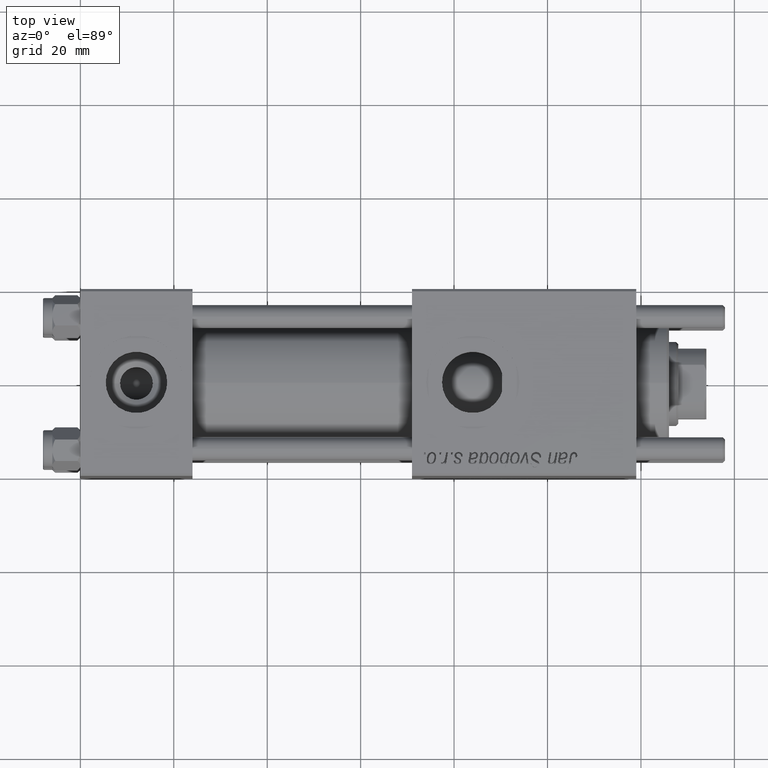
[diagram: clean part render]
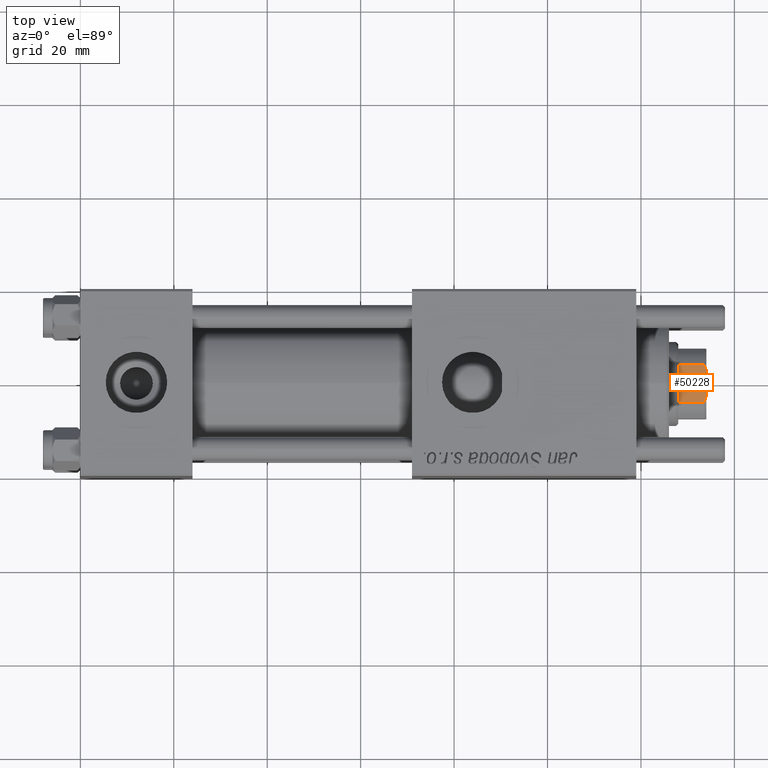
[diagram: same view with one face highlighted and labeled with its STEP entity id]
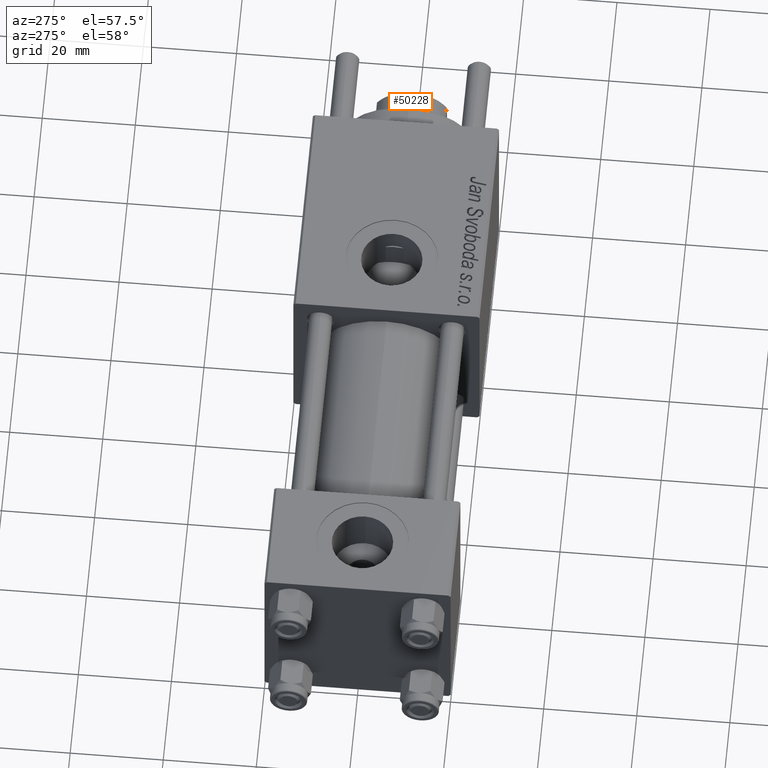
[diagram: same view with one face highlighted and labeled with its STEP entity id]
A machine part, top view. The second image highlights one B-rep face of the part: STEP entity #50228.
A second angle (auxiliary view) of the same face is appended — the face is thin or edge-on in the first view.
In plain terms, the highlighted planar face has unit normal (0, 0, -1).
Its self-contained STEP definition (entity closure, byte-faithful):
#227 = PLANE ( 'NONE',  #18018 ) ;
#372 = VERTEX_POINT ( 'NONE', #34569 ) ;
#522 = CARTESIAN_POINT ( 'NONE',  ( -4.000000000000001776, -7.500000000000000000, 109.4999999999999147 ) ) ;
#742 = CARTESIAN_POINT ( 'NONE',  ( -4.000000000000001776, -7.500000000000000000, 109.4999999999999147 ) ) ;
#1058 = FACE_OUTER_BOUND ( 'NONE', #43745, .T. ) ;
#2300 = EDGE_CURVE ( 'NONE', #16264, #11693, #46143, .T. ) ;
#2325 = DIRECTION ( 'NONE',  ( 1.000000000000000000, 0.000000000000000000, 0.000000000000000000 ) ) ;
#2937 = LINE ( 'NONE', #38183, #45451 ) ;
#2940 = CARTESIAN_POINT ( 'NONE',  ( 3.198463757182489431, -7.500000000000000000, 109.8557317173096379 ) ) ;
#4441 = ORIENTED_EDGE ( 'NONE', *, *, #24201, .T. ) ;
#5613 = B_SPLINE_CURVE_WITH_KNOTS ( 'NONE', 3,
 ( #31458, #48934, #9675, #522 ),
 .UNSPECIFIED., .F., .F.,
 ( 4, 4 ),
 ( 0.000000000000000000, 0.001314892599675087379 ),
 .UNSPECIFIED. ) ;
#7897 = CARTESIAN_POINT ( 'NONE',  ( 2.783882181414686574, -7.500000000000000000, 110.0000000000000000 ) ) ;
#8099 = CARTESIAN_POINT ( 'NONE',  ( 4.000000000000001776, -7.500000000000000000, 109.4999999999998579 ) ) ;
#9675 = CARTESIAN_POINT ( 'NONE',  ( -3.602928590769680639, -7.500000000000000000, 109.6868571337553959 ) ) ;
#11693 = VERTEX_POINT ( 'NONE', #742 ) ;
#11751 = LINE ( 'NONE', #24101, #14656 ) ;
#14656 = VECTOR ( 'NONE', #2325, 1000.000000000000000 ) ;
#16264 = VERTEX_POINT ( 'NONE', #51255 ) ;
#17706 = DIRECTION ( 'NONE',  ( 0.000000000000000000, 1.000000000000000000, 0.000000000000000000 ) ) ;
#18018 = AXIS2_PLACEMENT_3D ( 'NONE', #48924, #17706, #36016 ) ;
#18204 = VERTEX_POINT ( 'NONE', #7897 ) ;
#18898 = ORIENTED_EDGE ( 'NONE', *, *, #26827, .F. ) ;
#19921 = ORIENTED_EDGE ( 'NONE', *, *, #41376, .T. ) ;
#20064 = CARTESIAN_POINT ( 'NONE',  ( -4.000000000000001776, -7.500000000000000000, -0.001000000000001000089 ) ) ;
#24101 = CARTESIAN_POINT ( 'NONE',  ( -7.499999999999998224, -7.500000000000000000, 104.0000000000000000 ) ) ;
#24201 = EDGE_CURVE ( 'NONE', #16264, #54778, #11751, .T. ) ;
#26358 = B_SPLINE_CURVE_WITH_KNOTS ( 'NONE', 3,
 ( #8099, #55683, #2940, #38762 ),
 .UNSPECIFIED., .F., .F.,
 ( 4, 4 ),
 ( 9.540979117872439019E-18, 0.001314892599675281017 ),
 .UNSPECIFIED. ) ;
#26827 = EDGE_CURVE ( 'NONE', #372, #18204, #47214, .T. ) ;
#29432 = CARTESIAN_POINT ( 'NONE',  ( -7.499999999999998224, -7.500000000000000000, 110.0000000000000000 ) ) ;
#30165 = CARTESIAN_POINT ( 'NONE',  ( 4.000000000000001776, -7.500000000000000000, 103.9999999999999716 ) ) ;
#31458 = CARTESIAN_POINT ( 'NONE',  ( -2.783882181414881973, -7.500000000000000000, 110.0000000000000000 ) ) ;
#33068 = VECTOR ( 'NONE', #34020, 1000.000000000000000 ) ;
#34020 = DIRECTION ( 'NONE',  ( 1.000000000000000000, 0.000000000000000000, 0.000000000000000000 ) ) ;
#34448 = ORIENTED_EDGE ( 'NONE', *, *, #2300, .F. ) ;
#34569 = CARTESIAN_POINT ( 'NONE',  ( -2.783882181414881973, -7.500000000000000000, 110.0000000000000000 ) ) ;
#35685 = EDGE_CURVE ( 'NONE', #372, #11693, #5613, .T. ) ;
#36016 = DIRECTION ( 'NONE',  ( 0.000000000000000000, -0.000000000000000000, 1.000000000000000000 ) ) ;
#38183 = CARTESIAN_POINT ( 'NONE',  ( 4.000000000000001776, -7.500000000000000000, -0.001000000000001000089 ) ) ;
#38762 = CARTESIAN_POINT ( 'NONE',  ( 2.783882181414686574, -7.500000000000000000, 110.0000000000000000 ) ) ;
#41376 = EDGE_CURVE ( 'NONE', #51525, #18204, #26358, .T. ) ;
#41636 = DIRECTION ( 'NONE',  ( -0.000000000000000000, -0.000000000000000000, 1.000000000000000000 ) ) ;
#43745 = EDGE_LOOP ( 'NONE', ( #43772, #19921, #18898, #52689, #34448, #4441 ) ) ;
#43772 = ORIENTED_EDGE ( 'NONE', *, *, #53362, .T. ) ;
#45293 = DIRECTION ( 'NONE',  ( -0.000000000000000000, -0.000000000000000000, 1.000000000000000000 ) ) ;
#45451 = VECTOR ( 'NONE', #41636, 1000.000000000000000 ) ;
#46143 = LINE ( 'NONE', #20064, #55154 ) ;
#47214 = LINE ( 'NONE', #29432, #33068 ) ;
#48924 = CARTESIAN_POINT ( 'NONE',  ( -7.499999999999998224, -7.500000000000000000, 110.0000000000000000 ) ) ;
#48934 = CARTESIAN_POINT ( 'NONE',  ( -3.198463757182627099, -7.500000000000000000, 109.8557317173096521 ) ) ;
#50228 = ADVANCED_FACE ( 'NONE', ( #1058 ), #227, .F. ) ;
#51255 = CARTESIAN_POINT ( 'NONE',  ( -4.000000000000001776, -7.500000000000000000, 103.9999999999999858 ) ) ;
#51525 = VERTEX_POINT ( 'NONE', #51580 ) ;
#51580 = CARTESIAN_POINT ( 'NONE',  ( 4.000000000000001776, -7.500000000000000000, 109.4999999999998579 ) ) ;
#52689 = ORIENTED_EDGE ( 'NONE', *, *, #35685, .T. ) ;
#53362 = EDGE_CURVE ( 'NONE', #54778, #51525, #2937, .T. ) ;
#54778 = VERTEX_POINT ( 'NONE', #30165 ) ;
#55154 = VECTOR ( 'NONE', #45293, 1000.000000000000000 ) ;
#55683 = CARTESIAN_POINT ( 'NONE',  ( 3.602928590769623352, -7.500000000000000000, 109.6868571337553675 ) ) ;